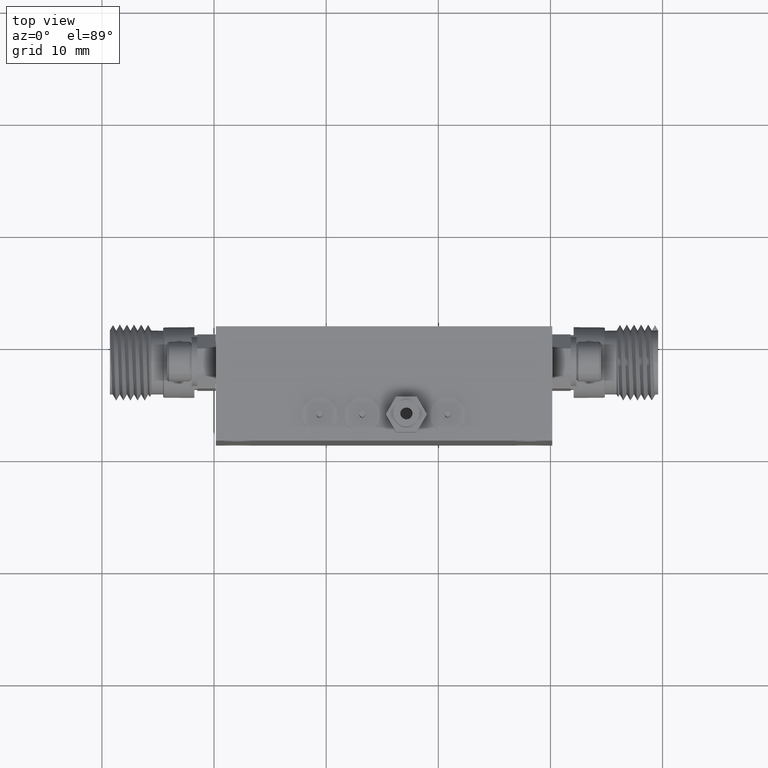
[diagram: clean part render]
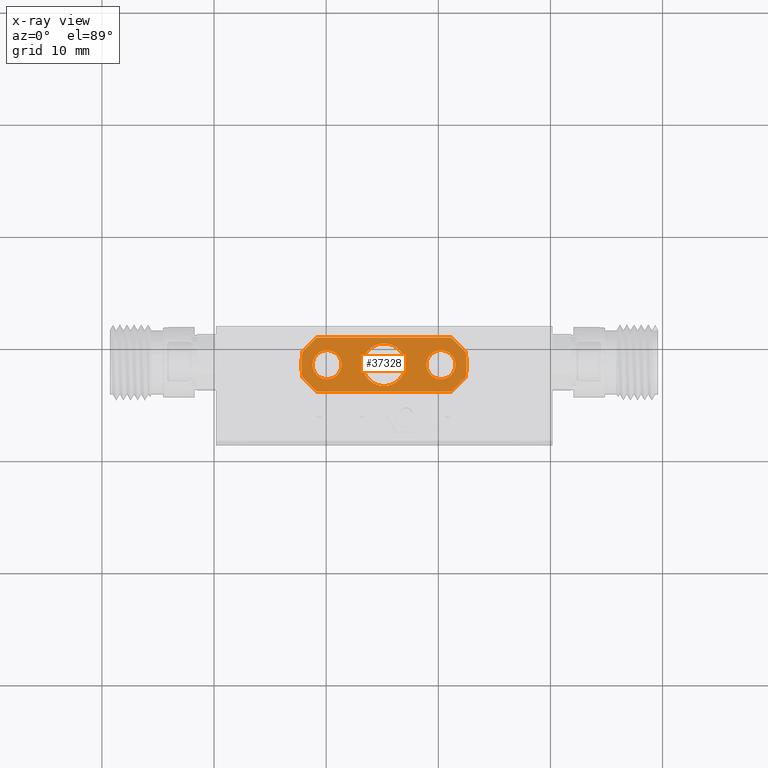
[diagram: x-ray — body ghosted, one internal face saturated and labeled with its STEP entity id]
A machine part, top view, then the same camera in x-ray: the body is ghosted and one INTERNAL B-rep face — a face not visible from any outside direction — is saturated and labeled: STEP entity #37328.
In plain terms, the highlighted planar face has unit normal (-0, -0, 1).
Its self-contained STEP definition (entity closure, byte-faithful):
#16 = CARTESIAN_POINT ( 'NONE',  ( 0.3966194867841117400, 0.7266928533145559100, 0.3057986351172003500 ) ) ;
#160 = CIRCLE ( 'NONE', #8814, 0.05100000000000008700 ) ;
#255 = CARTESIAN_POINT ( 'NONE',  ( 0.5966194867841138100, 0.7266928533145559100, 0.3057986351172003500 ) ) ;
#274 = EDGE_CURVE ( 'NONE', #17508, #31821, #160, .T. ) ;
#1061 = EDGE_CURVE ( 'NONE', #31821, #17508, #34341, .T. ) ;
#1142 = CIRCLE ( 'NONE', #5887, 0.3125000000000741600 ) ;
#1241 = CARTESIAN_POINT ( 'NONE',  ( 0.6193751671758988000, 0.7266928533145559100, 0.3057986351172003500 ) ) ;
#1357 = LINE ( 'NONE', #5639, #8699 ) ;
#1398 = DIRECTION ( 'NONE',  ( -1.000000000000000000, 0.0000000000000000000, 0.0000000000000000000 ) ) ;
#1656 = VERTEX_POINT ( 'NONE', #32935 ) ;
#1727 = EDGE_CURVE ( 'NONE', #12836, #20697, #33865, .T. ) ;
#1865 = CARTESIAN_POINT ( 'NONE',  ( 0.6716194867841115400, 0.7266928533145559100, 0.3057986351172003500 ) ) ;
#1882 = VERTEX_POINT ( 'NONE', #35169 ) ;
#2221 = CARTESIAN_POINT ( 'NONE',  ( 0.3601321397685757800, 0.8216928533145559900, 0.3057986351172003500 ) ) ;
#3331 = EDGE_CURVE ( 'NONE', #1882, #34531, #35161, .T. ) ;
#3474 = DIRECTION ( 'NONE',  ( -1.000000000000000000, 0.0000000000000000000, -1.092739197465445900E-016 ) ) ;
#3619 = EDGE_CURVE ( 'NONE', #31935, #31445, #31955, .T. ) ;
#3888 = CARTESIAN_POINT ( 'NONE',  ( 0.3101321397685757900, 0.6816928533145559800, 0.3057986351172003500 ) ) ;
#4200 = DIRECTION ( 'NONE',  ( 1.110223024625158500E-016, -1.441177220735979100E-016, 1.000000000000000000 ) ) ;
#4585 = CARTESIAN_POINT ( 'NONE',  ( 0.7456194867841123800, 0.7266928533145559100, 0.3057986351172003500 ) ) ;
#5122 = ORIENTED_EDGE ( 'NONE', *, *, #1727, .F. ) ;
#5175 = FACE_OUTER_BOUND ( 'NONE', #35449, .T. ) ;
#5558 = ORIENTED_EDGE ( 'NONE', *, *, #20197, .F. ) ;
#5618 = CIRCLE ( 'NONE', #24011, 0.05100000000000008700 ) ;
#5639 = CARTESIAN_POINT ( 'NONE',  ( 0.8706176619605172600, 0.6316928533145559400, 0.3057986351172003500 ) ) ;
#5887 = AXIS2_PLACEMENT_3D ( 'NONE', #1241, #25472, #36817 ) ;
#6113 = CARTESIAN_POINT ( 'NONE',  ( 0.8476194867841123600, 0.7266928533145559100, 0.3057986351172003500 ) ) ;
#6379 = VERTEX_POINT ( 'NONE', #10081 ) ;
#7338 = EDGE_CURVE ( 'NONE', #34531, #24410, #21307, .T. ) ;
#7574 = CIRCLE ( 'NONE', #34488, 0.05100000000000008700 ) ;
#7811 = CARTESIAN_POINT ( 'NONE',  ( 0.8831068337996476100, 0.7716928533145558400, 0.3057986351172003500 ) ) ;
#7995 = ORIENTED_EDGE ( 'NONE', *, *, #1061, .T. ) ;
#8082 = ORIENTED_EDGE ( 'NONE', *, *, #34671, .T. ) ;
#8153 = CARTESIAN_POINT ( 'NONE',  ( 0.8331068337996473400, 0.8216928533145557700, 0.3057986351172003500 ) ) ;
#8448 = CARTESIAN_POINT ( 'NONE',  ( 0.5738638063923243700, 0.7266928533145559100, 0.3057986351172003500 ) ) ;
#8699 = VECTOR ( 'NONE', #31997, 39.37007874015748100 ) ;
#8814 = AXIS2_PLACEMENT_3D ( 'NONE', #13555, #16470, #31157 ) ;
#9439 = LINE ( 'NONE', #23611, #29056 ) ;
#9897 = ORIENTED_EDGE ( 'NONE', *, *, #25149, .F. ) ;
#10051 = VECTOR ( 'NONE', #16548, 39.37007874015748900 ) ;
#10081 = CARTESIAN_POINT ( 'NONE',  ( 0.8331068337996478900, 0.6316928533145559400, 0.3057986351172003500 ) ) ;
#10108 = DIRECTION ( 'NONE',  ( -1.000000000000000000, 0.0000000000000000000, 0.0000000000000000000 ) ) ;
#11556 = CARTESIAN_POINT ( 'NONE',  ( 0.4308758132763449400, 0.5609491798067867100, 0.3057986351172003500 ) ) ;
#11564 = EDGE_LOOP ( 'NONE', ( #7995, #16908 ) ) ;
#11881 = PLANE ( 'NONE',  #23837 ) ;
#12515 = AXIS2_PLACEMENT_3D ( 'NONE', #22464, #31396, #19379 ) ;
#12621 = EDGE_CURVE ( 'NONE', #6379, #28023, #1357, .T. ) ;
#12836 = VERTEX_POINT ( 'NONE', #1865 ) ;
#13113 = ORIENTED_EDGE ( 'NONE', *, *, #28682, .F. ) ;
#13555 = CARTESIAN_POINT ( 'NONE',  ( 0.7966194867841124300, 0.7266928533145559100, 0.3057986351172003500 ) ) ;
#14258 = ORIENTED_EDGE ( 'NONE', *, *, #23124, .T. ) ;
#14296 = AXIS2_PLACEMENT_3D ( 'NONE', #8448, #28574, #31517 ) ;
#14425 = DIRECTION ( 'NONE',  ( -1.110223024625158500E-016, 1.441177220735979100E-016, -1.000000000000000000 ) ) ;
#14776 = FACE_BOUND ( 'NONE', #11564, .T. ) ;
#14800 = DIRECTION ( 'NONE',  ( -1.000000000000000000, 1.143896184318988600E-016, -1.110223024625157500E-016 ) ) ;
#14849 = EDGE_CURVE ( 'NONE', #1656, #6379, #36919, .T. ) ;
#14861 = DIRECTION ( 'NONE',  ( -0.7071067811865476800, 0.7071067811865472400, -1.804112415015880900E-016 ) ) ;
#14867 = CARTESIAN_POINT ( 'NONE',  ( 0.3966194867841117400, 0.7266928533145559100, 0.3057986351172003500 ) ) ;
#15529 = AXIS2_PLACEMENT_3D ( 'NONE', #35494, #20961, #3474 ) ;
#15866 = CARTESIAN_POINT ( 'NONE',  ( 0.4476194867841117300, 0.7266928533145559100, 0.3057986351172003500 ) ) ;
#16470 = DIRECTION ( 'NONE',  ( -1.110223024625158500E-016, 1.441177220735979100E-016, -1.000000000000000000 ) ) ;
#16548 = DIRECTION ( 'NONE',  ( 0.7071067811865475700, 0.7071067811865475700, -2.340199563321043700E-017 ) ) ;
#16839 = EDGE_CURVE ( 'NONE', #31445, #1656, #35909, .T. ) ;
#16908 = ORIENTED_EDGE ( 'NONE', *, *, #274, .T. ) ;
#17508 = VERTEX_POINT ( 'NONE', #6113 ) ;
#17629 = ORIENTED_EDGE ( 'NONE', *, *, #12621, .F. ) ;
#17951 = DIRECTION ( 'NONE',  ( -1.110223024625157800E-016, -1.441177220735978600E-016, 1.000000000000000000 ) ) ;
#18548 = ORIENTED_EDGE ( 'NONE', *, *, #34454, .F. ) ;
#18861 = CARTESIAN_POINT ( 'NONE',  ( 0.5966194867841115900, 0.7266928533145559100, 0.3057986351172003500 ) ) ;
#18956 = ORIENTED_EDGE ( 'NONE', *, *, #14849, .F. ) ;
#19379 = DIRECTION ( 'NONE',  ( 1.000000000000000000, 0.0000000000000000000, 0.0000000000000000000 ) ) ;
#20039 = VECTOR ( 'NONE', #36995, 39.37007874015748900 ) ;
#20167 = EDGE_LOOP ( 'NONE', ( #14258, #8082 ) ) ;
#20197 = EDGE_CURVE ( 'NONE', #24410, #31935, #9439, .T. ) ;
#20438 = DIRECTION ( 'NONE',  ( 1.000000000000000000, 0.0000000000000000000, 0.0000000000000000000 ) ) ;
#20551 = DIRECTION ( 'NONE',  ( 0.7071067811865476800, -0.7071067811865472400, 1.804112415015880900E-016 ) ) ;
#20697 = VERTEX_POINT ( 'NONE', #23054 ) ;
#20961 = DIRECTION ( 'NONE',  ( -1.110223024625158500E-016, 1.441177220735979100E-016, -1.000000000000000000 ) ) ;
#21307 = LINE ( 'NONE', #28412, #33160 ) ;
#21799 = CIRCLE ( 'NONE', #23582, 0.07500000000000009400 ) ;
#21942 = VERTEX_POINT ( 'NONE', #15866 ) ;
#22334 = CARTESIAN_POINT ( 'NONE',  ( 0.3601321397685757800, 0.6316928533145559400, 0.3057986351172003500 ) ) ;
#22464 = CARTESIAN_POINT ( 'NONE',  ( 0.7966194867841124300, 0.7266928533145559100, 0.3057986351172003500 ) ) ;
#23054 = CARTESIAN_POINT ( 'NONE',  ( 0.5216194867841115200, 0.7266928533145559100, 0.3057986351172003500 ) ) ;
#23124 = EDGE_CURVE ( 'NONE', #26370, #21942, #5618, .T. ) ;
#23582 = AXIS2_PLACEMENT_3D ( 'NONE', #18861, #4200, #1398 ) ;
#23611 = CARTESIAN_POINT ( 'NONE',  ( 0.7623631602918803400, 0.8924365268223225500, 0.3057986351172003500 ) ) ;
#23837 = AXIS2_PLACEMENT_3D ( 'NONE', #255, #17951, #14800 ) ;
#23887 = FACE_BOUND ( 'NONE', #37359, .T. ) ;
#24011 = AXIS2_PLACEMENT_3D ( 'NONE', #16, #14425, #20438 ) ;
#24402 = DIRECTION ( 'NONE',  ( 1.110223024625158500E-016, -1.441177220735979100E-016, 1.000000000000000000 ) ) ;
#24410 = VERTEX_POINT ( 'NONE', #8153 ) ;
#24659 = CARTESIAN_POINT ( 'NONE',  ( 0.5966194867841115900, 0.7266928533145559100, 0.3057986351172003500 ) ) ;
#25149 = EDGE_CURVE ( 'NONE', #28023, #27447, #35693, .T. ) ;
#25472 = DIRECTION ( 'NONE',  ( -1.110223024625158500E-016, 1.441177220735979100E-016, -1.000000000000000000 ) ) ;
#26370 = VERTEX_POINT ( 'NONE', #35149 ) ;
#26436 = ORIENTED_EDGE ( 'NONE', *, *, #3619, .F. ) ;
#26472 = AXIS2_PLACEMENT_3D ( 'NONE', #24659, #24402, #10108 ) ;
#27447 = VERTEX_POINT ( 'NONE', #3888 ) ;
#27963 = CARTESIAN_POINT ( 'NONE',  ( 0.8863638063923982000, 0.7266928533145559100, 0.3057986351172002900 ) ) ;
#28023 = VERTEX_POINT ( 'NONE', #22334 ) ;
#28102 = ORIENTED_EDGE ( 'NONE', *, *, #7338, .F. ) ;
#28165 = CARTESIAN_POINT ( 'NONE',  ( 0.7623631602918811100, 0.5609491798067890400, 0.3057986351172006200 ) ) ;
#28412 = CARTESIAN_POINT ( 'NONE',  ( 0.8706176619605167100, 0.8216928533145559900, 0.3057986351172003500 ) ) ;
#28574 = DIRECTION ( 'NONE',  ( -1.110223024625158500E-016, 1.441177220735979100E-016, -1.000000000000000000 ) ) ;
#28682 = EDGE_CURVE ( 'NONE', #20697, #12836, #21799, .T. ) ;
#29056 = VECTOR ( 'NONE', #20551, 39.37007874015748100 ) ;
#29538 = DIRECTION ( 'NONE',  ( 1.000000000000000000, 0.0000000000000000000, 0.0000000000000000000 ) ) ;
#29664 = DIRECTION ( 'NONE',  ( -1.110223024625158500E-016, 1.441177220735979100E-016, -1.000000000000000000 ) ) ;
#30891 = ORIENTED_EDGE ( 'NONE', *, *, #3331, .F. ) ;
#31117 = ORIENTED_EDGE ( 'NONE', *, *, #16839, .F. ) ;
#31157 = DIRECTION ( 'NONE',  ( 1.000000000000000000, 0.0000000000000000000, 0.0000000000000000000 ) ) ;
#31357 = DIRECTION ( 'NONE',  ( 1.000000000000000000, -1.143896184318988800E-016, 1.110223024625157300E-016 ) ) ;
#31396 = DIRECTION ( 'NONE',  ( -1.110223024625158500E-016, 1.441177220735979100E-016, -1.000000000000000000 ) ) ;
#31445 = VERTEX_POINT ( 'NONE', #27963 ) ;
#31517 = DIRECTION ( 'NONE',  ( -1.000000000000000000, 0.0000000000000000000, -1.092739197465445900E-016 ) ) ;
#31654 = FACE_BOUND ( 'NONE', #20167, .T. ) ;
#31821 = VERTEX_POINT ( 'NONE', #4585 ) ;
#31935 = VERTEX_POINT ( 'NONE', #7811 ) ;
#31955 = CIRCLE ( 'NONE', #15529, 0.3125000000000741600 ) ;
#31997 = DIRECTION ( 'NONE',  ( -1.000000000000000000, 1.143896184318988800E-016, -1.110223024625157300E-016 ) ) ;
#32935 = CARTESIAN_POINT ( 'NONE',  ( 0.8831068337996476100, 0.6816928533145559800, 0.3057986351172003500 ) ) ;
#33160 = VECTOR ( 'NONE', #31357, 39.37007874015748100 ) ;
#33865 = CIRCLE ( 'NONE', #26472, 0.07500000000000009400 ) ;
#34341 = CIRCLE ( 'NONE', #12515, 0.05100000000000008700 ) ;
#34454 = EDGE_CURVE ( 'NONE', #27447, #1882, #1142, .T. ) ;
#34488 = AXIS2_PLACEMENT_3D ( 'NONE', #14867, #29664, #29538 ) ;
#34531 = VERTEX_POINT ( 'NONE', #2221 ) ;
#34671 = EDGE_CURVE ( 'NONE', #21942, #26370, #7574, .T. ) ;
#34786 = VECTOR ( 'NONE', #14861, 39.37007874015748100 ) ;
#35149 = CARTESIAN_POINT ( 'NONE',  ( 0.3456194867841117000, 0.7266928533145559100, 0.3057986351172003500 ) ) ;
#35161 = LINE ( 'NONE', #37370, #10051 ) ;
#35169 = CARTESIAN_POINT ( 'NONE',  ( 0.3101321397685757900, 0.7716928533145558400, 0.3057986351172003500 ) ) ;
#35449 = EDGE_LOOP ( 'NONE', ( #18956, #31117, #26436, #5558, #28102, #30891, #18548, #9897, #17629 ) ) ;
#35494 = CARTESIAN_POINT ( 'NONE',  ( 0.5738638063923243700, 0.7266928533145559100, 0.3057986351172003500 ) ) ;
#35693 = LINE ( 'NONE', #11556, #34786 ) ;
#35909 = CIRCLE ( 'NONE', #14296, 0.3125000000000741600 ) ;
#36817 = DIRECTION ( 'NONE',  ( -1.000000000000000000, 0.0000000000000000000, -1.092739197465445900E-016 ) ) ;
#36919 = LINE ( 'NONE', #28165, #20039 ) ;
#36995 = DIRECTION ( 'NONE',  ( -0.7071067811865475700, -0.7071067811865475700, 2.340199563321043700E-017 ) ) ;
#37328 = ADVANCED_FACE ( 'NONE', ( #5175, #14776, #31654, #23887 ), #11881, .T. ) ;
#37359 = EDGE_LOOP ( 'NONE', ( #5122, #13113 ) ) ;
#37370 = CARTESIAN_POINT ( 'NONE',  ( 0.4308758132763445000, 0.8924365268223248800, 0.3057986351172000700 ) ) ;